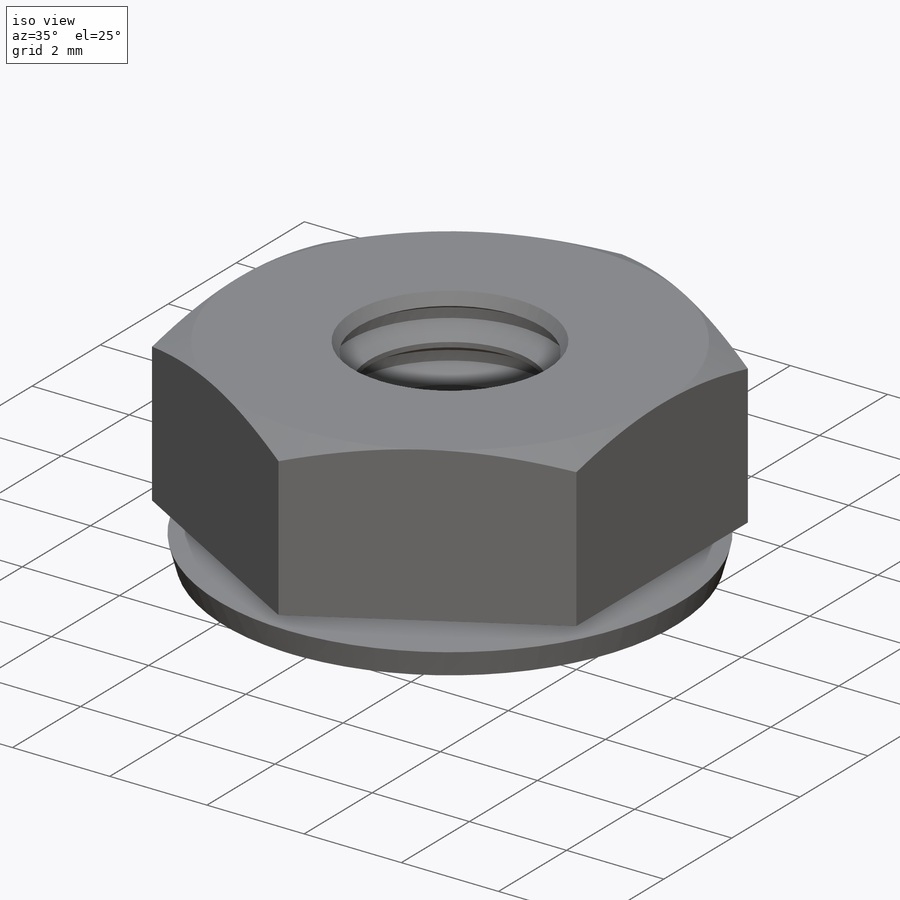
[diagram: iso view]
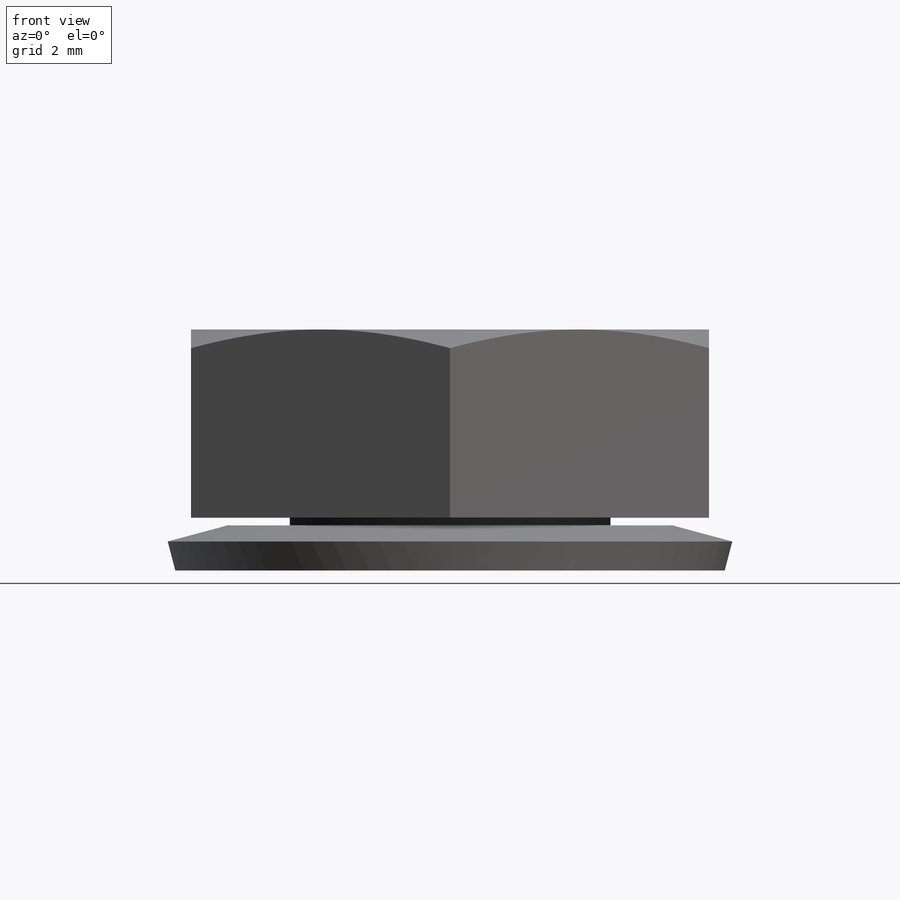
[diagram: front view]
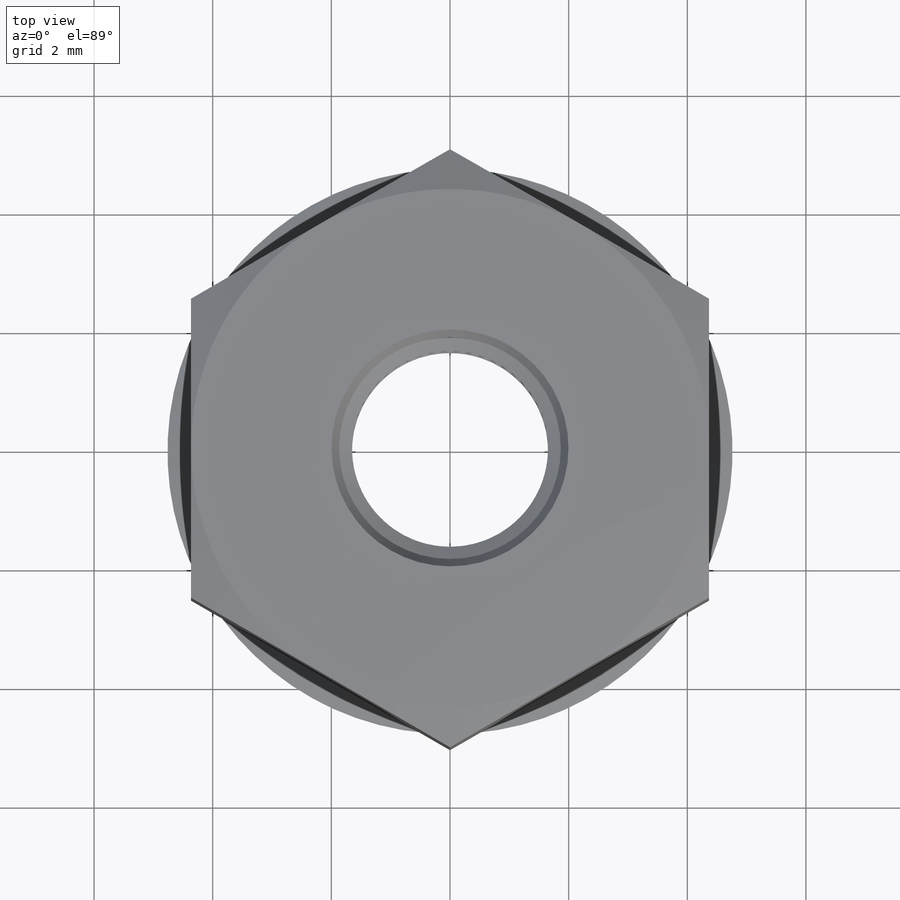
[diagram: top view]
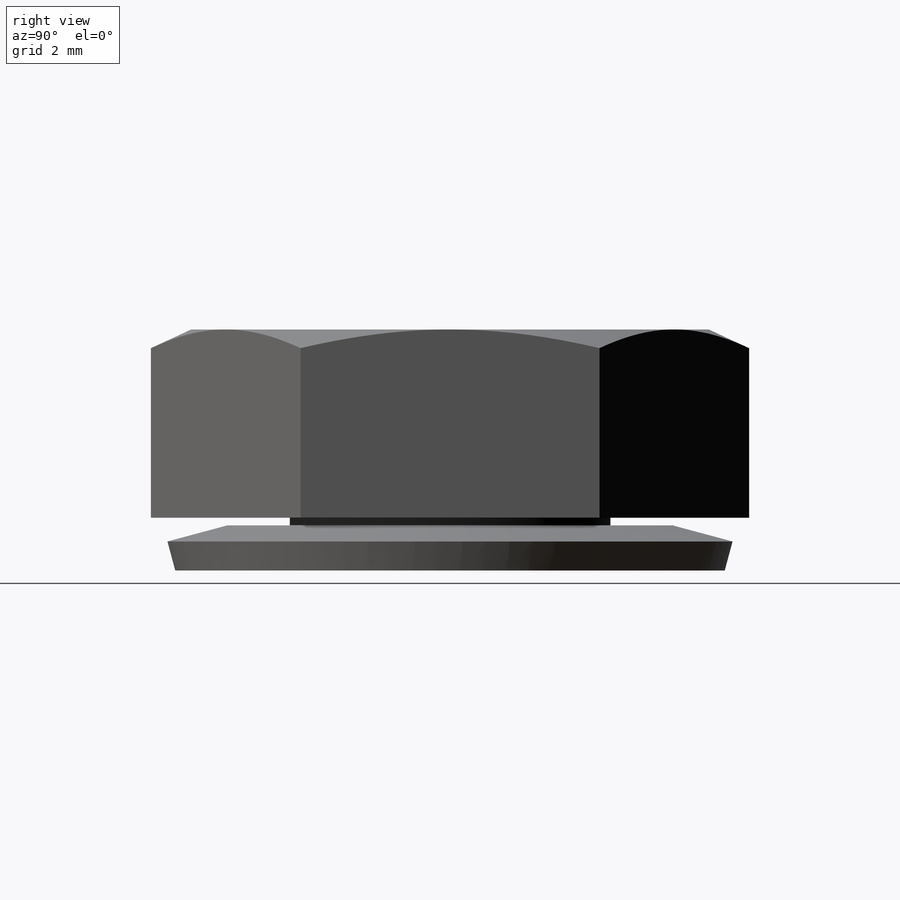
[diagram: right view]
SOLIDWORKS PART (.sldprt)
format: sldprt  version: not decoded by parser v0  size: 254,464 bytes
history: native  units: mm
features: sketch x5, cut_revolve x3, material x1, extrude x1, pattern_linear x1, revolve x1 (+13 scaffold rows collapsed)
feature tree (25):
  scaffold x13  (default folders/planes/origin — collapsed)
  material  "Material <not specified>"
  sketch  "Sketch1"  dims[Hex Flats=~8.73125mm]
  extrude  "Extrude1"  Depth=3.175mm Height1=3.175mm
  sketch  "Sketch2"  dims[c1.D1=~0.537208mm c2.D1=25.0deg c2.D2=~8.73125mm]
  cut_revolve  "Cut-Revolve1"  Angle=360deg
  sketch  "Sketch3"  dims[c1.D1=~0.219193mm c2.D1=60.0deg c2.Major Dia=4.1656mm c2.D3=0.0625mm c2.D4=~0.198437mm c2.D5=0.5mm c3.D3=0.0625mm c3.Pitch=0.5mm c3.D5=0.3125mm c4.D3=~0.520727mm c5.D3=90.0deg c5.Pitch=~0.79375mm c5.D5=~0.083227mm c5.D2=~0.099219mm]
  cut_revolve  "Cut-Revolve3"  Angle=360deg
  pattern_linear  "LPattern2"  Count1=5 Count2=1 Spacing1=0.79375mm Spacing2=50mm
  sketch  "Sketch4"
  cut_revolve  "Cut-Revolve4"  Angle=360deg
  sketch  "Sketch12"  dims[c1.Washer Dia=9.525mm c1.D2=~0.595313mm c1.D3=~1.201857mm c2.D3=165.0deg c2.D1=0.381mm c2.D4=~0.074414mm c3.D1=~1.315831mm c4.D1=~189.37366deg c5.D1=3.175mm c5.D2=~0.890088mm c6.D2=165.0deg c6.D3=0.508mm c6.D4=0.127mm c6.D1=~0.289672mm c7.D3=0.508mm c7.D1=~0.52592mm c8.D1=95.0deg c9.D1=~0.52592mm c9.D3=0.508mm c10.D1=~0.49069mm c10.D3=0.508mm]
  revolve  "Revolve1"  Angle=360deg hex flats=14.2748mm hex flats/2=7.366mm
decode coverage: 10 of 11 modeling features carry decoded parameters
note: ~ marks probable driven/reference dimensions
note: suppression state not decoded; provenance and decode notes live in map.json
